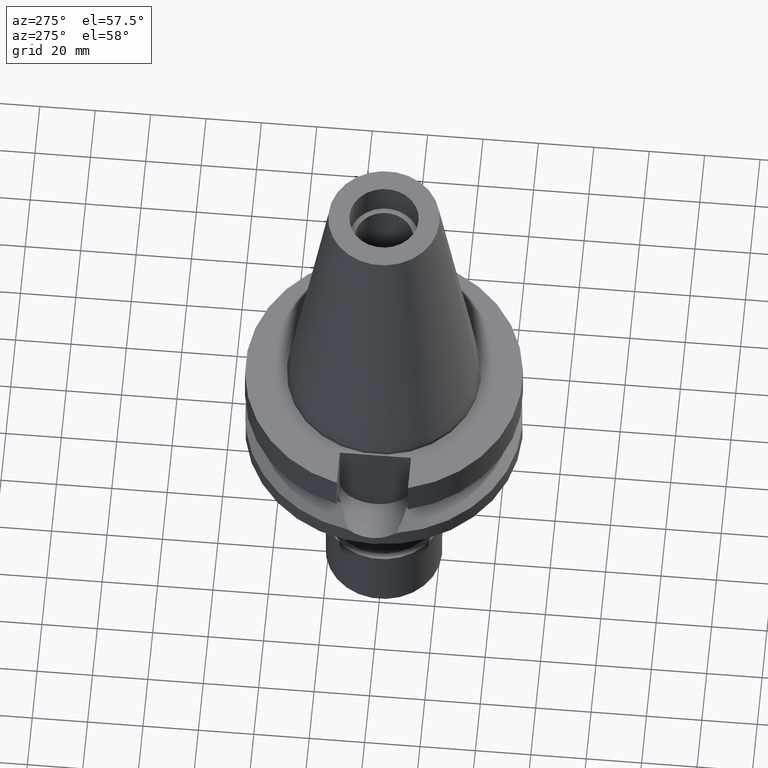
[diagram: clean part render]
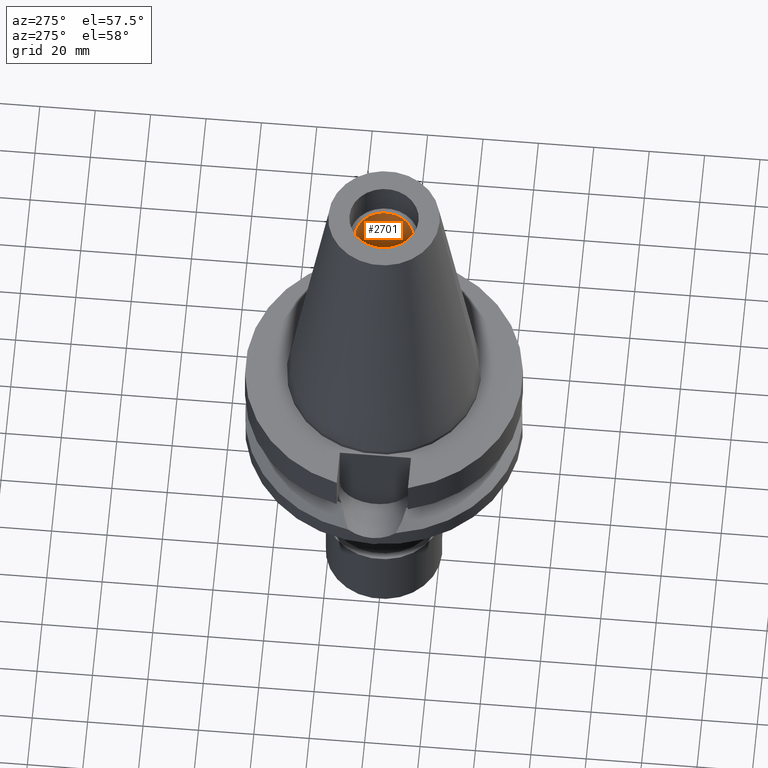
[diagram: same view with one face highlighted and labeled with its STEP entity id]
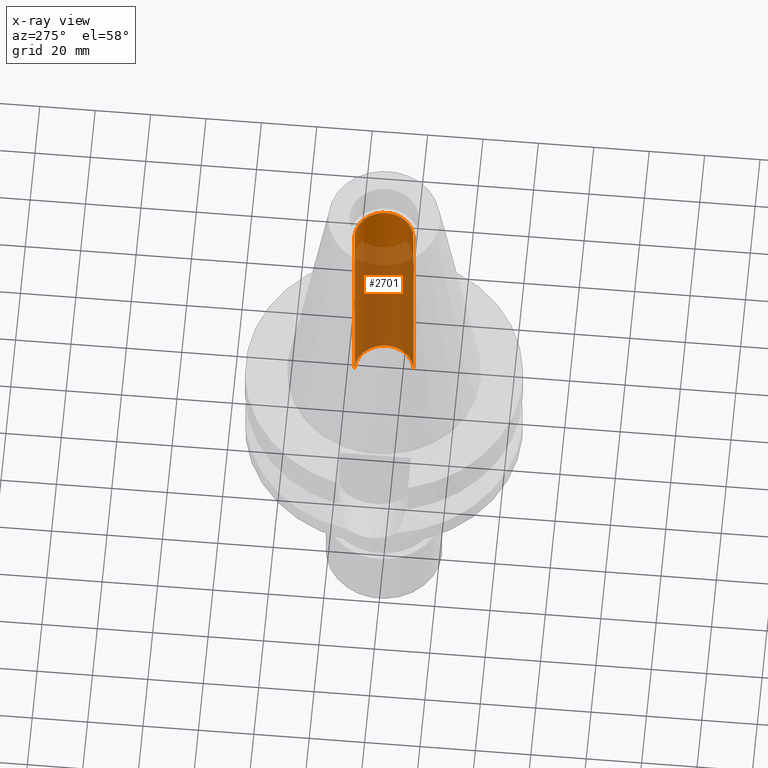
[diagram: x-ray of the same camera — body ghosted, the highlighted face saturated]
A machine part, auxiliary view. The second image highlights one B-rep face of the part: STEP entity #2701.
The next image is the same camera in x-ray: the body ghosted, the highlighted face saturated — about 79% of this face is hidden behind the body in this view.
In plain terms, the highlighted cylindrical surface (edge-blend (fillet) strip) has radius 10.6 mm, axis along (0, 0, -1).
Its self-contained STEP definition (entity closure, byte-faithful):
#95 = CARTESIAN_POINT ( 'NONE',  ( 0.0000000000000000000, -10.59999999999999964, -1.278976924367999843E-13 ) ) ;
#111 = CARTESIAN_POINT ( 'NONE',  ( 0.0000000000000000000, 10.59999999999999964, 88.79999999999999716 ) ) ;
#116 = DIRECTION ( 'NONE',  ( 0.0000000000000000000, 0.0000000000000000000, 1.000000000000000000 ) ) ;
#233 = EDGE_CURVE ( 'NONE', #1474, #2001, #724, .T. ) ;
#278 = EDGE_CURVE ( 'NONE', #1915, #2001, #3118, .T. ) ;
#286 = ORIENTED_EDGE ( 'NONE', *, *, #893, .F. ) ;
#516 = VECTOR ( 'NONE', #711, 1000.000000000000000 ) ;
#622 = AXIS2_PLACEMENT_3D ( 'NONE', #1671, #2396, #2885 ) ;
#711 = DIRECTION ( 'NONE',  ( 0.0000000000000000000, 0.0000000000000000000, 1.000000000000000000 ) ) ;
#715 = VERTEX_POINT ( 'NONE', #2785 ) ;
#724 = CIRCLE ( 'NONE', #1902, 10.59999999999999964 ) ;
#773 = EDGE_CURVE ( 'NONE', #715, #1474, #2985, .T. ) ;
#893 = EDGE_CURVE ( 'NONE', #715, #1915, #1042, .T. ) ;
#982 = EDGE_LOOP ( 'NONE', ( #286, #2989, #1476, #1584 ) ) ;
#1037 = CARTESIAN_POINT ( 'NONE',  ( 0.0000000000000000000, -10.59999999999999964, 88.79999999999999716 ) ) ;
#1042 = CIRCLE ( 'NONE', #622, 10.59999999999999964 ) ;
#1077 = DIRECTION ( 'NONE',  ( 0.0000000000000000000, 0.0000000000000000000, 1.000000000000000000 ) ) ;
#1097 = DIRECTION ( 'NONE',  ( 0.0000000000000000000, -1.000000000000000000, 0.0000000000000000000 ) ) ;
#1257 = AXIS2_PLACEMENT_3D ( 'NONE', #2422, #1677, #2180 ) ;
#1361 = CARTESIAN_POINT ( 'NONE',  ( 0.0000000000000000000, 10.59999999999999964, -1.278976924367999843E-13 ) ) ;
#1474 = VERTEX_POINT ( 'NONE', #1037 ) ;
#1476 = ORIENTED_EDGE ( 'NONE', *, *, #233, .T. ) ;
#1584 = ORIENTED_EDGE ( 'NONE', *, *, #278, .F. ) ;
#1671 = CARTESIAN_POINT ( 'NONE',  ( 0.0000000000000000000, 2.600415013308999844E-14, -1.278976924367999843E-13 ) ) ;
#1677 = DIRECTION ( 'NONE',  ( 0.0000000000000000000, 0.0000000000000000000, -1.000000000000000000 ) ) ;
#1902 = AXIS2_PLACEMENT_3D ( 'NONE', #2298, #116, #1097 ) ;
#1915 = VERTEX_POINT ( 'NONE', #1361 ) ;
#2001 = VERTEX_POINT ( 'NONE', #111 ) ;
#2058 = VECTOR ( 'NONE', #1077, 1000.000000000000000 ) ;
#2180 = DIRECTION ( 'NONE',  ( 0.0000000000000000000, -1.000000000000000000, 0.0000000000000000000 ) ) ;
#2298 = CARTESIAN_POINT ( 'NONE',  ( 0.0000000000000000000, 2.600415013308999844E-14, 88.79999999999999716 ) ) ;
#2352 = CARTESIAN_POINT ( 'NONE',  ( 0.0000000000000000000, 10.59999999999999964, -1.278976924367999843E-13 ) ) ;
#2396 = DIRECTION ( 'NONE',  ( 0.0000000000000000000, 0.0000000000000000000, 1.000000000000000000 ) ) ;
#2422 = CARTESIAN_POINT ( 'NONE',  ( 0.0000000000000000000, 2.600415013308999844E-14, 112.3399999999999892 ) ) ;
#2701 = ADVANCED_FACE ( 'NONE', ( #2941 ), #3124, .F. ) ;
#2785 = CARTESIAN_POINT ( 'NONE',  ( 0.0000000000000000000, -10.59999999999999964, -1.278976924367999843E-13 ) ) ;
#2885 = DIRECTION ( 'NONE',  ( 0.0000000000000000000, -1.000000000000000000, 0.0000000000000000000 ) ) ;
#2941 = FACE_OUTER_BOUND ( 'NONE', #982, .T. ) ;
#2985 = LINE ( 'NONE', #95, #2058 ) ;
#2989 = ORIENTED_EDGE ( 'NONE', *, *, #773, .T. ) ;
#3118 = LINE ( 'NONE', #2352, #516 ) ;
#3124 = CYLINDRICAL_SURFACE ( 'NONE', #1257, 10.59999999999999964 ) ;